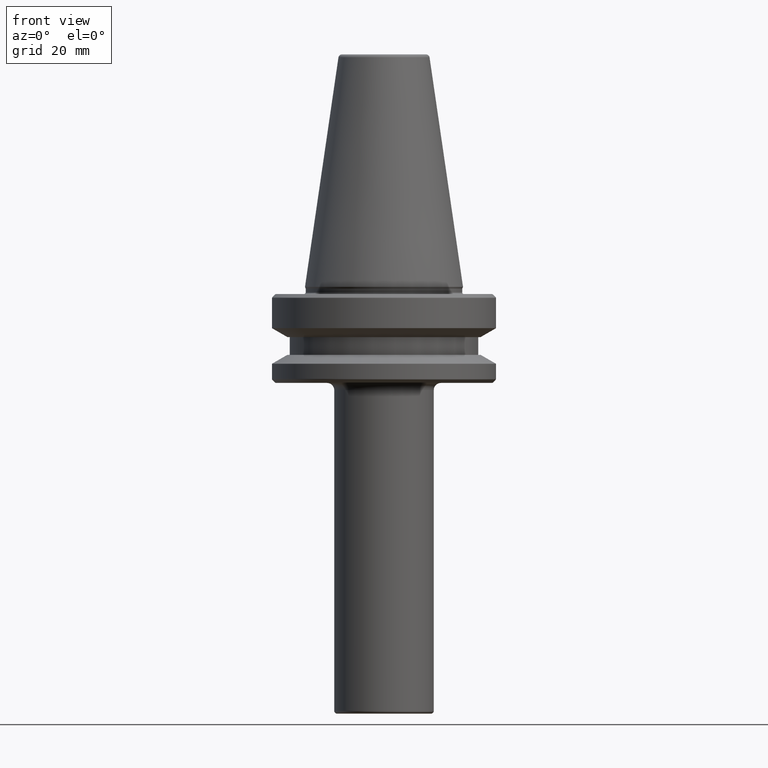
[diagram: clean part render]
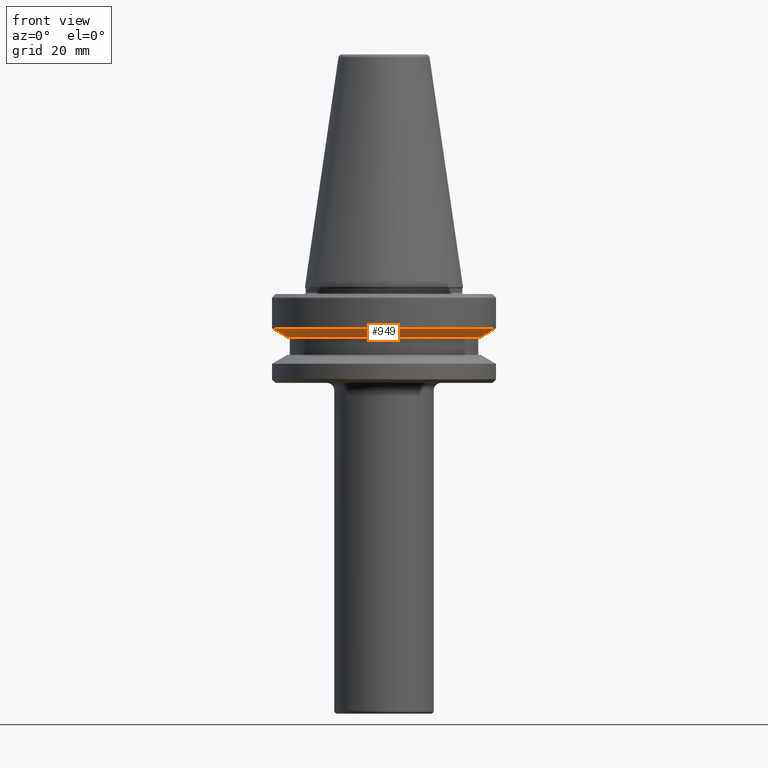
[diagram: same view with one face highlighted and labeled with its STEP entity id]
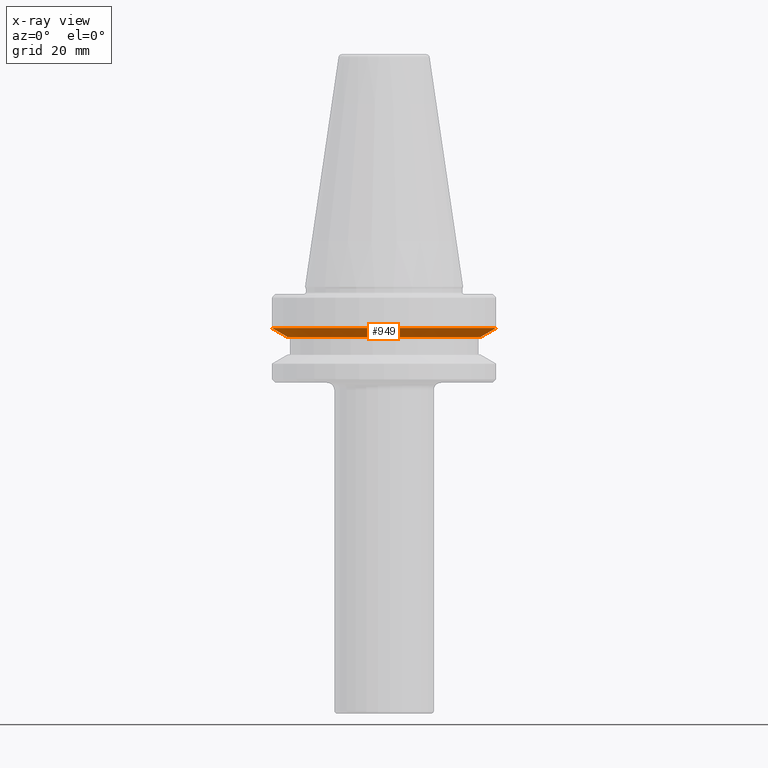
[diagram: x-ray of the same camera — body ghosted, the highlighted face saturated]
A machine part, front view. The second image highlights one B-rep face of the part: STEP entity #949.
The next image is the same camera in x-ray: the body ghosted, the highlighted face saturated — about 0% of this face is hidden behind the body in this view.
In plain terms, the highlighted conical surface has half-angle 60 deg.
Its self-contained STEP definition (entity closure, byte-faithful):
#19 = ORIENTED_EDGE ( 'NONE', *, *, #216, .T. ) ;
#25 = CARTESIAN_POINT ( 'NONE',  ( -31.50000000000000000, 3.857637417314162700E-015, -11.60014666881784400 ) ) ;
#27 = CARTESIAN_POINT ( 'NONE',  ( 0.0000000000000000000, 0.0000000000000000000, -11.60014666881784400 ) ) ;
#39 = EDGE_CURVE ( 'NONE', #1056, #594, #1015, .T. ) ;
#44 = CARTESIAN_POINT ( 'NONE',  ( -31.50000000000000000, 3.857637417314162700E-015, -11.60014666881784400 ) ) ;
#68 = AXIS2_PLACEMENT_3D ( 'NONE', #27, #630, #116 ) ;
#89 = EDGE_CURVE ( 'NONE', #1057, #594, #941, .T. ) ;
#116 = DIRECTION ( 'NONE',  ( -1.000000000000000000, 0.0000000000000000000, 0.0000000000000000000 ) ) ;
#148 = EDGE_CURVE ( 'NONE', #579, #1056, #923, .T. ) ;
#216 = EDGE_CURVE ( 'NONE', #579, #1057, #869, .T. ) ;
#255 = AXIS2_PLACEMENT_3D ( 'NONE', #582, #785, #394 ) ;
#338 = FACE_OUTER_BOUND ( 'NONE', #1112, .T. ) ;
#394 = DIRECTION ( 'NONE',  ( 1.000000000000000000, 0.0000000000000000000, 0.0000000000000000000 ) ) ;
#411 = CARTESIAN_POINT ( 'NONE',  ( -27.17012701892217300, 3.592509162964584100E-015, -14.10000000000000500 ) ) ;
#432 = DIRECTION ( 'NONE',  ( -0.0000000000000000000, -0.0000000000000000000, -1.000000000000000000 ) ) ;
#518 = AXIS2_PLACEMENT_3D ( 'NONE', #1046, #432, #1154 ) ;
#527 = CONICAL_SURFACE ( 'NONE', #255, 31.50000000000000000, 1.047197551196599600 ) ;
#579 = VERTEX_POINT ( 'NONE', #1158 ) ;
#582 = CARTESIAN_POINT ( 'NONE',  ( 0.0000000000000000000, 0.0000000000000000000, -11.60014666881784400 ) ) ;
#594 = VERTEX_POINT ( 'NONE', #25 ) ;
#630 = DIRECTION ( 'NONE',  ( -0.0000000000000000000, -0.0000000000000000000, -1.000000000000000000 ) ) ;
#650 = DIRECTION ( 'NONE',  ( -0.8660254037844396000, 1.060575238724908000E-016, 0.4999999999999983900 ) ) ;
#670 = ORIENTED_EDGE ( 'NONE', *, *, #148, .F. ) ;
#672 = ORIENTED_EDGE ( 'NONE', *, *, #39, .F. ) ;
#704 = CARTESIAN_POINT ( 'NONE',  ( 31.50000000000000000, 0.0000000000000000000, -11.60014666881784400 ) ) ;
#767 = ORIENTED_EDGE ( 'NONE', *, *, #89, .T. ) ;
#785 = DIRECTION ( 'NONE',  ( 0.0000000000000000000, 0.0000000000000000000, 1.000000000000000000 ) ) ;
#869 = LINE ( 'NONE', #888, #886 ) ;
#886 = VECTOR ( 'NONE', #991, 1000.000000000000000 ) ;
#888 = CARTESIAN_POINT ( 'NONE',  ( 31.50000000000000000, 0.0000000000000000000, -11.60014666881784400 ) ) ;
#923 = CIRCLE ( 'NONE', #518, 27.17012701892217300 ) ;
#941 = CIRCLE ( 'NONE', #68, 31.50000000000000000 ) ;
#949 = ADVANCED_FACE ( 'NONE', ( #338 ), #527, .T. ) ;
#991 = DIRECTION ( 'NONE',  ( 0.8660254037844396000, 0.0000000000000000000, 0.4999999999999983900 ) ) ;
#1015 = LINE ( 'NONE', #44, #1033 ) ;
#1033 = VECTOR ( 'NONE', #650, 1000.000000000000000 ) ;
#1046 = CARTESIAN_POINT ( 'NONE',  ( 0.0000000000000000000, 0.0000000000000000000, -14.10000000000000500 ) ) ;
#1056 = VERTEX_POINT ( 'NONE', #411 ) ;
#1057 = VERTEX_POINT ( 'NONE', #704 ) ;
#1112 = EDGE_LOOP ( 'NONE', ( #672, #670, #19, #767 ) ) ;
#1154 = DIRECTION ( 'NONE',  ( -1.000000000000000000, 0.0000000000000000000, 0.0000000000000000000 ) ) ;
#1158 = CARTESIAN_POINT ( 'NONE',  ( 27.17012701892217300, 0.0000000000000000000, -14.10000000000000500 ) ) ;